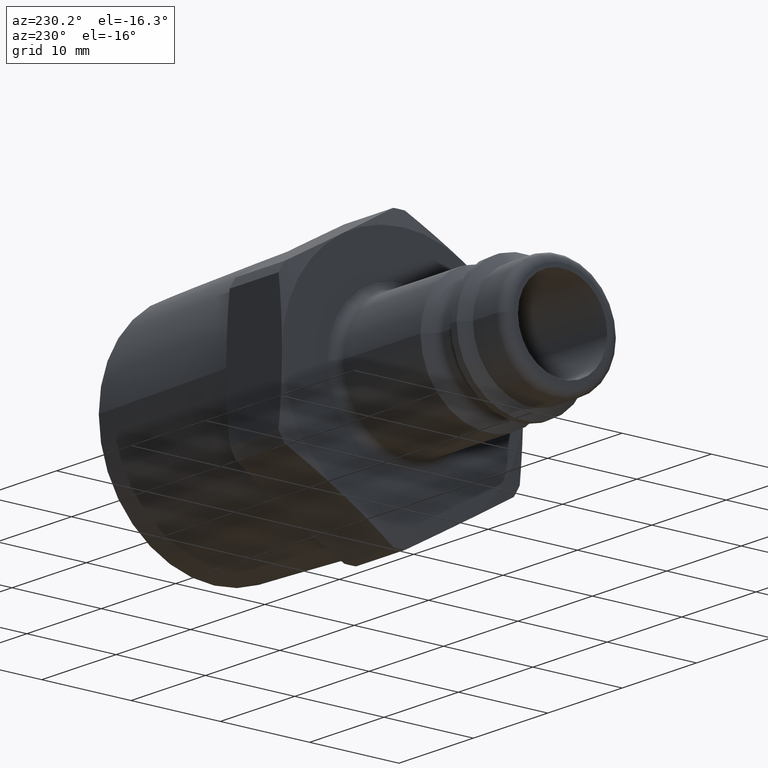
[diagram: clean part render]
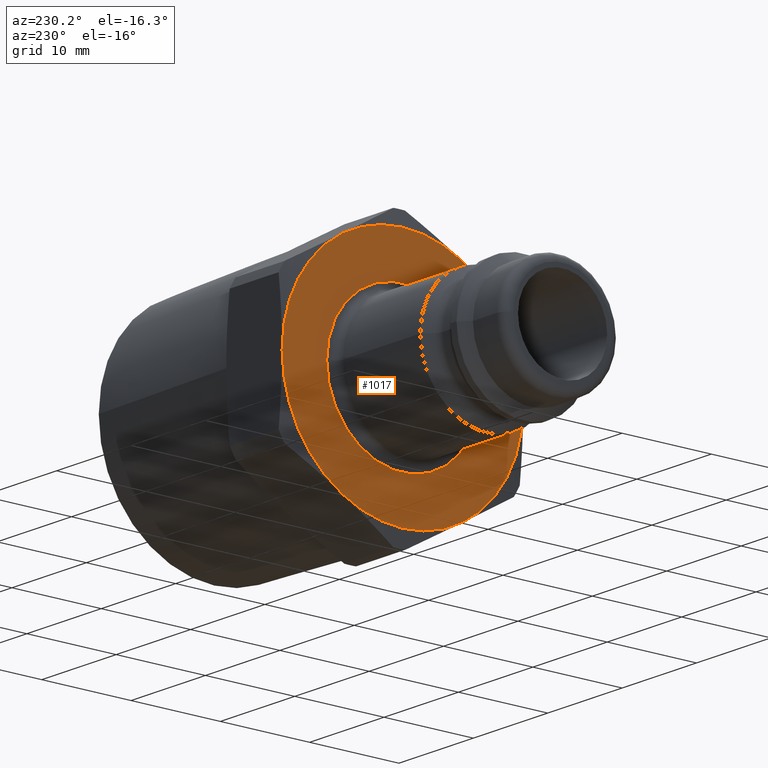
[diagram: same view with one face highlighted and labeled with its STEP entity id]
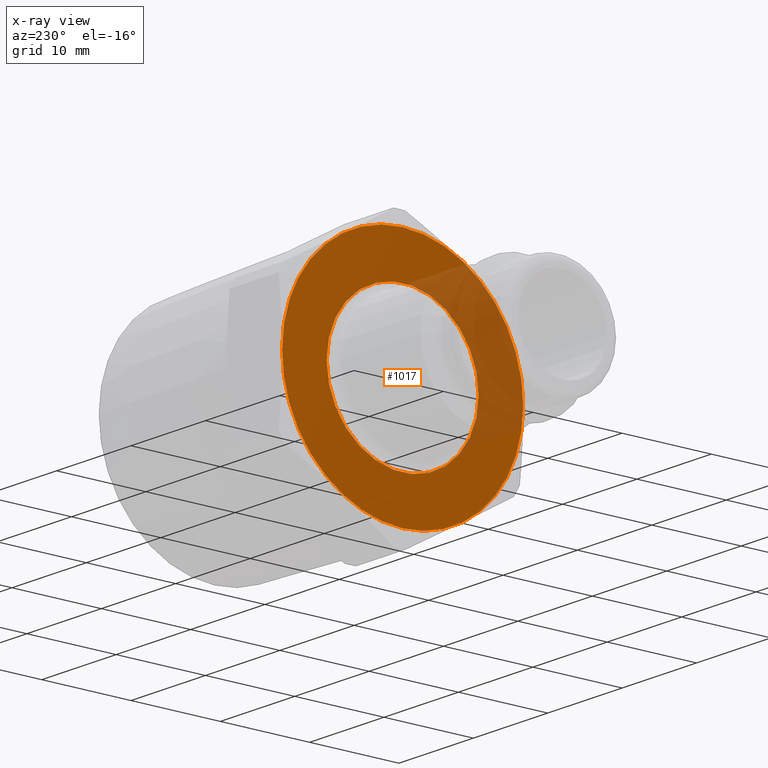
[diagram: x-ray of the same camera — body ghosted, the highlighted face saturated]
A machine part, auxiliary view. The second image highlights one B-rep face of the part: STEP entity #1017.
The next image is the same camera in x-ray: the body ghosted, the highlighted face saturated — about 24% of this face is hidden behind the body in this view.
In plain terms, the highlighted planar face has unit normal (-1, 0, 0).
Its self-contained STEP definition (entity closure, byte-faithful):
#75=CARTESIAN_POINT('',(21.500000000000004,6.749999999999990,-11.691342951089929));
#76=VERTEX_POINT('',#75);
#159=CARTESIAN_POINT('',(21.500000000000004,-6.750000000000007,-11.691342951089920));
#160=VERTEX_POINT('',#159);
#243=CARTESIAN_POINT('',(21.500000000000004,-13.500000000000000,2.248202E-015));
#244=VERTEX_POINT('',#243);
#327=CARTESIAN_POINT('',(21.500000000000004,-6.749999999999998,11.691342951089926));
#328=VERTEX_POINT('',#327);
#411=CARTESIAN_POINT('',(21.500000000000004,6.750000000000002,11.691342951089922));
#412=VERTEX_POINT('',#411);
#772=CARTESIAN_POINT('',(21.500000000000000,13.500000000000000,0.0));
#773=VERTEX_POINT('',#772);
#774=CARTESIAN_POINT('',(21.500000000000000,0.0,0.0));
#775=DIRECTION('',(1.0,0.0,0.0));
#776=DIRECTION('',(0.0,1.0,0.0));
#777=AXIS2_PLACEMENT_3D('',#774,#775,#776);
#778=CIRCLE('',#777,13.500000000000000);
#779=EDGE_CURVE('',#76,#773,#778,.T.);
#818=CARTESIAN_POINT('',(21.500000000000000,0.0,0.0));
#819=DIRECTION('',(1.0,0.0,0.0));
#820=DIRECTION('',(0.0,1.0,0.0));
#821=AXIS2_PLACEMENT_3D('',#818,#819,#820);
#822=CIRCLE('',#821,13.500000000000000);
#823=EDGE_CURVE('',#773,#412,#822,.T.);
#836=CARTESIAN_POINT('',(21.500000000000000,0.0,0.0));
#837=DIRECTION('',(1.0,0.0,0.0));
#838=DIRECTION('',(0.0,1.0,0.0));
#839=AXIS2_PLACEMENT_3D('',#836,#837,#838);
#840=CIRCLE('',#839,13.500000000000000);
#841=EDGE_CURVE('',#412,#328,#840,.T.);
#854=CARTESIAN_POINT('',(21.500000000000000,0.0,0.0));
#855=DIRECTION('',(1.0,0.0,0.0));
#856=DIRECTION('',(0.0,1.0,0.0));
#857=AXIS2_PLACEMENT_3D('',#854,#855,#856);
#858=CIRCLE('',#857,13.500000000000000);
#859=EDGE_CURVE('',#328,#244,#858,.T.);
#872=CARTESIAN_POINT('',(21.500000000000000,0.0,0.0));
#873=DIRECTION('',(1.0,0.0,0.0));
#874=DIRECTION('',(0.0,1.0,0.0));
#875=AXIS2_PLACEMENT_3D('',#872,#873,#874);
#876=CIRCLE('',#875,13.500000000000000);
#877=EDGE_CURVE('',#244,#160,#876,.T.);
#963=CARTESIAN_POINT('',(21.500000000000000,8.500000000000000,-2.081900E-015));
#964=VERTEX_POINT('',#963);
#965=CARTESIAN_POINT('',(21.500000000000000,0.0,0.0));
#966=DIRECTION('',(-1.0,0.0,0.0));
#967=DIRECTION('',(0.0,-1.0,0.0));
#968=AXIS2_PLACEMENT_3D('',#965,#966,#967);
#969=CIRCLE('',#968,8.500000000000000);
#970=EDGE_CURVE('',#964,#964,#969,.T.);
#995=CARTESIAN_POINT('',(21.500000000000000,10.500000000000000,0.0));
#996=DIRECTION('',(-1.0,0.0,0.0));
#997=DIRECTION('',(0.0,0.0,1.0));
#998=AXIS2_PLACEMENT_3D('',#995,#996,#997);
#999=PLANE('',#998);
#1000=ORIENTED_EDGE('',*,*,#823,.F.);
#1001=ORIENTED_EDGE('',*,*,#779,.F.);
#1002=CARTESIAN_POINT('',(21.500000000000000,0.0,0.0));
#1003=DIRECTION('',(1.0,0.0,0.0));
#1004=DIRECTION('',(0.0,1.0,0.0));
#1005=AXIS2_PLACEMENT_3D('',#1002,#1003,#1004);
#1006=CIRCLE('',#1005,13.500000000000000);
#1007=EDGE_CURVE('',#160,#76,#1006,.T.);
#1008=ORIENTED_EDGE('',*,*,#1007,.F.);
#1009=ORIENTED_EDGE('',*,*,#877,.F.);
#1010=ORIENTED_EDGE('',*,*,#859,.F.);
#1011=ORIENTED_EDGE('',*,*,#841,.F.);
#1012=EDGE_LOOP('',(#1000,#1001,#1008,#1009,#1010,#1011));
#1013=FACE_OUTER_BOUND('',#1012,.T.);
#1014=ORIENTED_EDGE('',*,*,#970,.F.);
#1015=EDGE_LOOP('',(#1014));
#1016=FACE_BOUND('',#1015,.T.);
#1017=ADVANCED_FACE('',(#1013,#1016),#999,.T.);